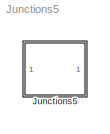
MODEL Junctions5
KIND model
CONFIG AbsTol = auto
CONFIG FixedStep = auto
CONFIG MaxStep = auto
CONFIG MinStep = auto
CONFIG RelTol = 1e-3
CONFIG Solver = ode45
CONFIG SolverMode = Auto
CONFIG StartTime = 0.0
CONFIG StopTime = 10.0
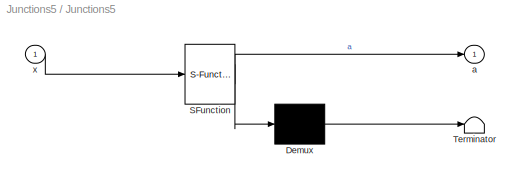
BLOCK [SubSystem] Junctions5
  MaskDescription = Stateflow diagram
  MaskDisplay = plot(sf('Private','sfblk','xIcon'),sf('Private','sfblk','yIcon'));text(0.5,0,sf('Private', 'sfblk', 'tIcon'),'HorizontalAl','Center','VerticalAl','Bottom');
  MaskIconFrame = off
  MaskIconOpaque = off
  MaskIconRotate = none
  MaskIconUnits = autoscale
  MaskSelfModifiable = on
  MaskType = Stateflow
  Ports = [1, 1]
  TreatAsAtomicUnit = off
BLOCK [Demux] Junctions5/ Demux 
  Outputs = 1
  Ports = [1, 1]
BLOCK [S-Function] Junctions5/ SFunction 
  FunctionName = sf_sfun
  PortCounts = [1 2]
  Ports = [1, 2]
  Tag = Stateflow S-Function Junctions5 1
BLOCK [Terminator] Junctions5/ Terminator 
BLOCK [Outport] Junctions5/a
BLOCK [Inport] Junctions5/x
  PortDimensions = 1
LINE Junctions5/ Demux :1 -> Junctions5/ Terminator :1
LINE Junctions5/ SFunction :1 -> Junctions5/ Demux :1
LINE Junctions5/ SFunction :2 -> Junctions5/a:1
LINE Junctions5/x:1 -> Junctions5/ SFunction :1
CHART Junctions5 states=2 transitions=5
  STATE_LABEL 'A/\\nex: a+=10000'
  STATE_LABEL 'B/\\nex: a=0'
